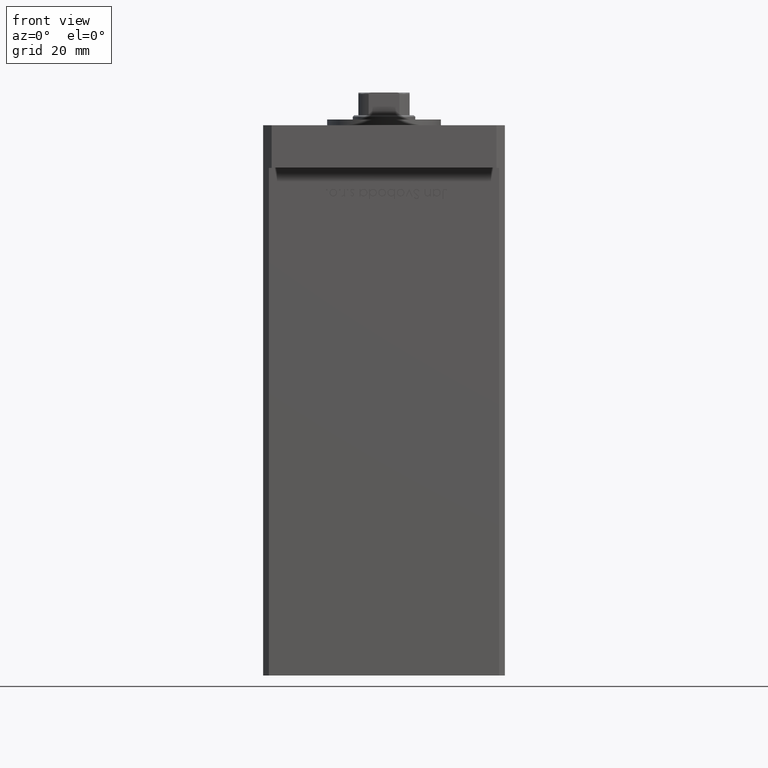
[diagram: clean part render]
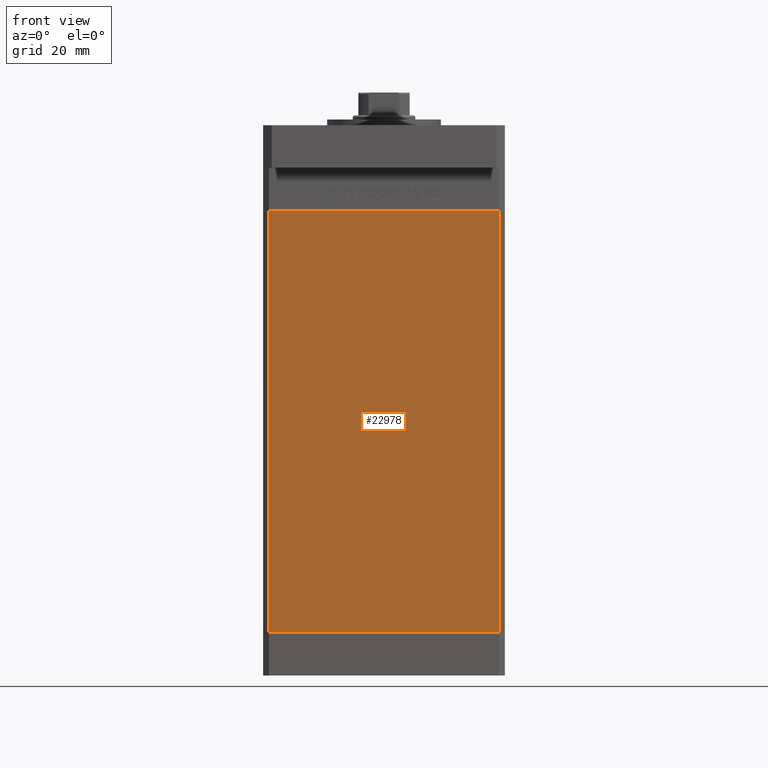
[diagram: same view with one face highlighted and labeled with its STEP entity id]
A machine part, front view. The second image highlights one B-rep face of the part: STEP entity #22978.
In plain terms, the highlighted planar face has unit normal (0, 1, 0).
Its self-contained STEP definition (entity closure, byte-faithful):
#1347 = DIRECTION ( 'NONE',  ( -0.000000000000000000, -0.000000000000000000, -1.000000000000000000 ) ) ;
#1601 = VERTEX_POINT ( 'NONE', #31002 ) ;
#2681 = VERTEX_POINT ( 'NONE', #4599 ) ;
#3129 = VERTEX_POINT ( 'NONE', #20334 ) ;
#3989 = ORIENTED_EDGE ( 'NONE', *, *, #4823, .T. ) ;
#4599 = CARTESIAN_POINT ( 'NONE',  ( 40.49999999999998579, -37.50000000000000711, 0.000000000000000000 ) ) ;
#4823 = EDGE_CURVE ( 'NONE', #1601, #3129, #5428, .T. ) ;
#5428 = LINE ( 'NONE', #42837, #23423 ) ;
#7692 = CARTESIAN_POINT ( 'NONE',  ( 40.49999999999998579, -37.50000000000000711, 148.5000000000000000 ) ) ;
#7780 = ORIENTED_EDGE ( 'NONE', *, *, #8154, .T. ) ;
#8154 = EDGE_CURVE ( 'NONE', #3129, #2681, #35675, .T. ) ;
#9278 = ORIENTED_EDGE ( 'NONE', *, *, #36422, .F. ) ;
#11081 = CARTESIAN_POINT ( 'NONE',  ( -40.49999999999998579, -37.50000000000000711, 148.5000000000000000 ) ) ;
#14595 = DIRECTION ( 'NONE',  ( 1.000000000000000000, 0.000000000000000000, 0.000000000000000000 ) ) ;
#19409 = ORIENTED_EDGE ( 'NONE', *, *, #47919, .F. ) ;
#20334 = CARTESIAN_POINT ( 'NONE',  ( -40.49999999999998579, -37.50000000000000711, 0.000000000000000000 ) ) ;
#21179 = VERTEX_POINT ( 'NONE', #43796 ) ;
#22978 = ADVANCED_FACE ( 'NONE', ( #40573 ), #23481, .F. ) ;
#23423 = VECTOR ( 'NONE', #1347, 1000.000000000000000 ) ;
#23481 = PLANE ( 'NONE',  #38542 ) ;
#26318 = VECTOR ( 'NONE', #14595, 1000.000000000000000 ) ;
#27002 = VECTOR ( 'NONE', #52202, 1000.000000000000000 ) ;
#28350 = DIRECTION ( 'NONE',  ( 0.000000000000000000, 1.000000000000000000, 0.000000000000000000 ) ) ;
#31002 = CARTESIAN_POINT ( 'NONE',  ( -40.49999999999998579, -37.50000000000000711, 148.5000000000000000 ) ) ;
#31897 = DIRECTION ( 'NONE',  ( 0.000000000000000000, -0.000000000000000000, 1.000000000000000000 ) ) ;
#32354 = LINE ( 'NONE', #7692, #45759 ) ;
#34304 = EDGE_LOOP ( 'NONE', ( #7780, #19409, #9278, #3989 ) ) ;
#35675 = LINE ( 'NONE', #39748, #27002 ) ;
#35964 = CARTESIAN_POINT ( 'NONE',  ( -40.49999999999998579, -37.50000000000000711, 148.5000000000000000 ) ) ;
#36422 = EDGE_CURVE ( 'NONE', #1601, #21179, #48211, .T. ) ;
#38542 = AXIS2_PLACEMENT_3D ( 'NONE', #35964, #28350, #31897 ) ;
#39748 = CARTESIAN_POINT ( 'NONE',  ( -40.49999999999998579, -37.50000000000000711, 0.000000000000000000 ) ) ;
#40573 = FACE_OUTER_BOUND ( 'NONE', #34304, .T. ) ;
#42837 = CARTESIAN_POINT ( 'NONE',  ( -40.49999999999998579, -37.50000000000000711, 148.5000000000000000 ) ) ;
#43796 = CARTESIAN_POINT ( 'NONE',  ( 40.49999999999998579, -37.50000000000000711, 148.5000000000000000 ) ) ;
#44279 = DIRECTION ( 'NONE',  ( -0.000000000000000000, -0.000000000000000000, -1.000000000000000000 ) ) ;
#45759 = VECTOR ( 'NONE', #44279, 1000.000000000000000 ) ;
#47919 = EDGE_CURVE ( 'NONE', #21179, #2681, #32354, .T. ) ;
#48211 = LINE ( 'NONE', #11081, #26318 ) ;
#52202 = DIRECTION ( 'NONE',  ( 1.000000000000000000, 0.000000000000000000, 0.000000000000000000 ) ) ;